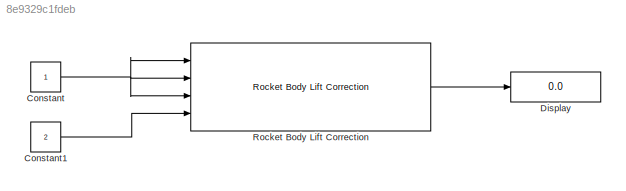
MODEL slx_8e9329c1fdeb
KIND model
BLOCK [Constant] Constant
BLOCK [Constant] Constant1
  Value = 2
BLOCK [Display] Display
  Decimation = 1
  Ports = [1]
BLOCK [Reference] Rocket Body Lift Correction  REF=rocket_angular_flight_library/Rocket Body Lift Correction
  Ports = [4, 1]
  SourceBlock = rocket_angular_flight_library/Rocket Body Lift Correction
  SourceType = SubSystem
LINE Constant1:1 -> Rocket Body Lift Correction:4
NET Constant:1 -> Rocket Body Lift Correction:1, Rocket Body Lift Correction:2, Rocket Body Lift Correction:3
LINE Rocket Body Lift Correction:1 -> Display:1
note: NET lines group one-source signal fan-out (src -> all destinations, sorted); 1:1 wires keep LINE
